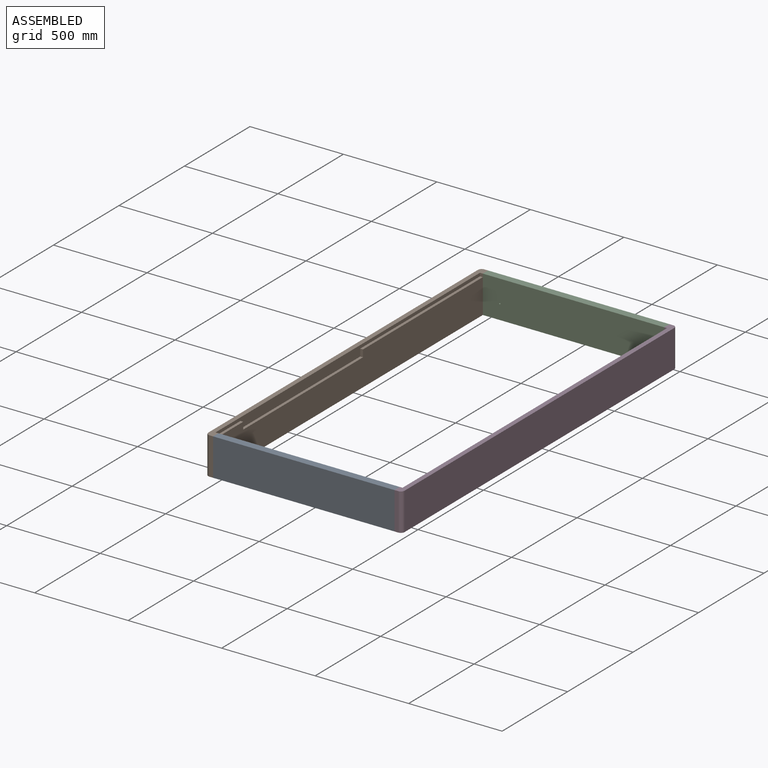
[diagram: assembled view]
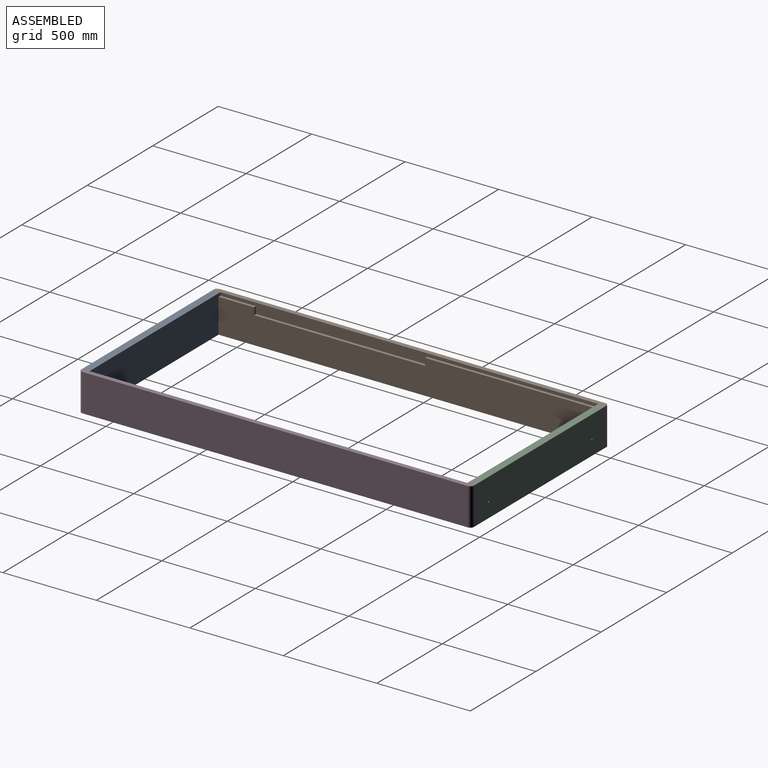
[diagram: assembled view, second angle]
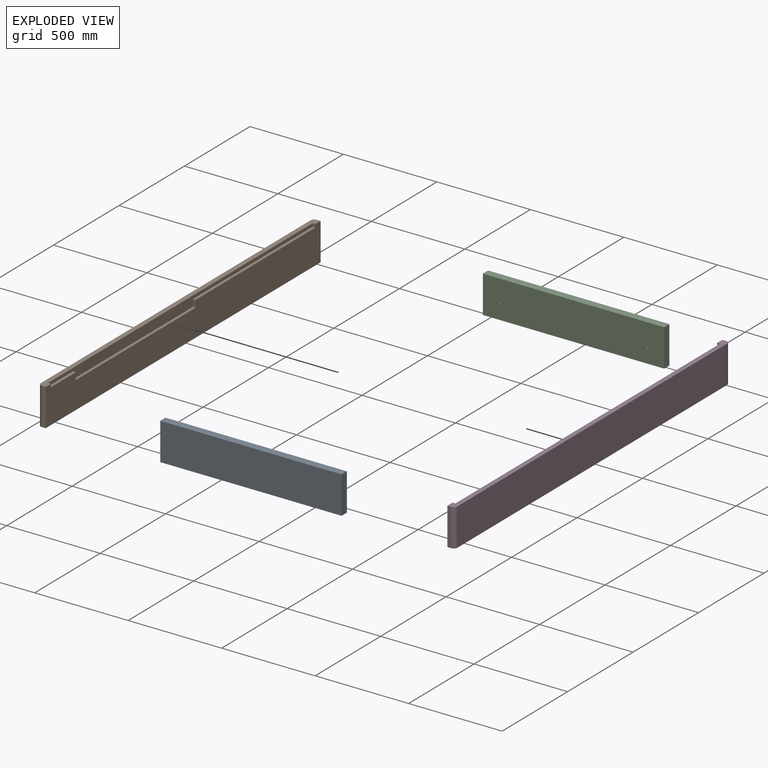
[diagram: exploded view]
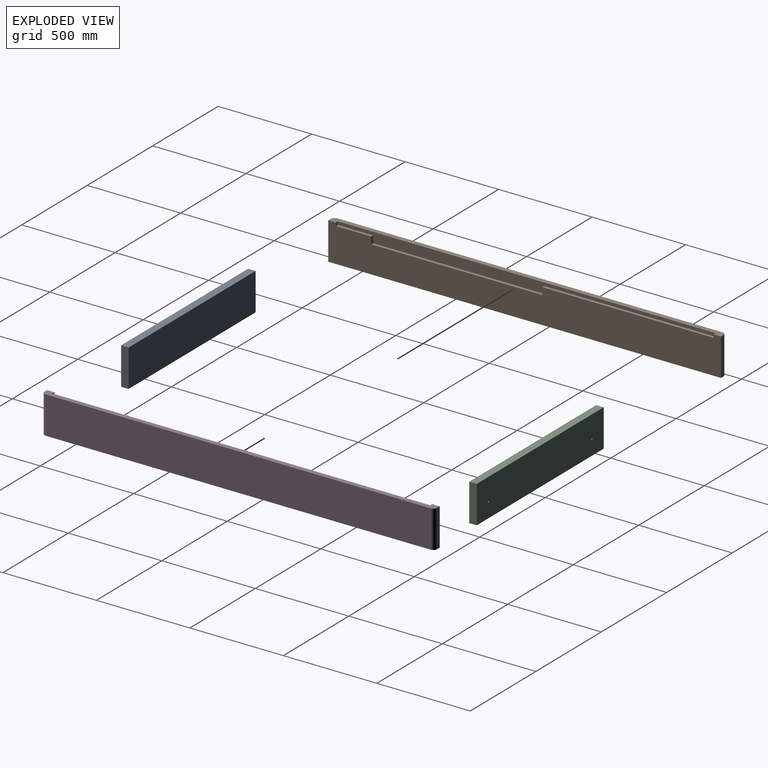
[diagram: exploded view, second angle]
ASSEMBLY  parts=4 mates=2
PART A: 6 faces, bbox 970x40x200 mm
  f0: plane 970x40mm, normal (0,0,1), area 38800mm2, adj f1,f3,f4,f5
  f1: plane 970x200mm, normal (0,-1,0), area 194000mm2, adj f0,f2,f4,f5
  f2: plane 970x40mm, normal (0,0,-1), area 38800mm2, adj f1,f3,f4,f5
  f3: plane 970x200mm, normal (0,1,0), area 194000mm2, adj f0,f2,f4,f5
  f4: plane 200x40mm, normal (1,0,0), area 8000mm2, adj f0,f1,f2,f3
  f5: plane 200x40mm, normal (-1,0,0), area 8000mm2, adj f0,f1,f2,f3
PART B: 16 faces, bbox 40x2100x200 mm
  f0: plane 190x15mm, normal (0,0,1), area 2850mm2, adj f6,f9,f12,f13
  f1: plane 2100x40mm, normal (0,0,1), area 53528.3mm2, adj f2,f4,f5,f6,f7,f8,f9,f11
  f2: plane 200x20mm, normal (0,-1,0), area 4000mm2, adj f1,f3,f6,f7
  f3: plane 2100x40mm, normal (0,0,-1), area 83828.3mm2, adj f2,f4,f5,f6,f7,f8
  f4: plane 200x20mm, normal (0,1,0), area 4000mm2, adj f1,f3,f6,f8
  f5: plane 2060x200mm, normal (-1,0,0), area 412000mm2, adj f1,f3,f7,f8
  f6: plane 2100x200mm, normal (1,0,0), area 350890mm2, adj f0,f1,f2,f3,f4,f9,f10,f11
  f7: cylinder r=20mm len=200mm, axis (0,0,1), area 6283.2mm2, adj f1,f2,f3,f5
  f8: cylinder r=20mm len=200mm, axis (0,0,-1), area 6283.2mm2, adj f1,f3,f4,f5
  f9: plane 17x15mm, normal (0,1,0), area 255mm2, adj f0,f1,f6,f12
  f10: plane 915x15mm, normal (0,0,1), area 13725mm2, adj f6,f11,f12,f15
  f11: plane 17x15mm, normal (0,-1,0), area 255mm2, adj f1,f6,f10,f12
  f12: plane 2020x55mm, normal (1,0,0), area 69110mm2, adj f0,f1,f9,f10,f11,f13,f14,f15
  f13: plane 38x15mm, normal (0,1,0), area 570mm2, adj f0,f6,f12,f14
  f14: plane 915x15mm, normal (0,0,1), area 13725mm2, adj f6,f12,f13,f15
  f15: plane 38x15mm, normal (0,-1,0), area 570mm2, adj f6,f10,f12,f14
PART C: 8 faces, bbox 970x40x200 mm
  f0: plane 970x40mm, normal (0,0,1), area 38800mm2, adj f1,f3,f4,f5
  f1: plane 970x200mm, normal (0,-1,0), area 193899.5mm2, adj f0,f2,f4,f5,f6,f7
  f2: plane 970x40mm, normal (0,0,-1), area 38800mm2, adj f1,f3,f4,f5
  f3: plane 970x200mm, normal (0,1,0), area 193899.5mm2, adj f0,f2,f4,f5,f6,f7
  f4: plane 200x40mm, normal (1,0,0), area 8000mm2, adj f0,f1,f2,f3
  f5: plane 200x40mm, normal (-1,0,0), area 8000mm2, adj f0,f1,f2,f3
  f6: cylinder r=4mm len=40mm, axis (0,1,0), area 1005.3mm2, adj f1,f3
  f7: cylinder r=4mm len=40mm, axis (0,1,0), area 1005.3mm2, adj f1,f3
PART D: 16 faces, bbox 40x2100x200 mm
  f0: plane 2100x200mm, normal (-1,0,0), area 353170mm2, adj f1,f2,f3,f4,f6,f9,f10,f11
  f1: plane 190x15mm, normal (0,0,1), area 2850mm2, adj f0,f11,f12,f14
  f2: plane 2100x40mm, normal (0,0,1), area 53528.3mm2, adj f0,f3,f4,f5,f7,f8,f9,f11
  f3: plane 200x20mm, normal (0,1,0), area 4000mm2, adj f0,f2,f6,f8
  f4: plane 200x20mm, normal (0,-1,0), area 4000mm2, adj f0,f2,f6,f7
  f5: plane 2060x200mm, normal (1,0,0), area 412000mm2, adj f2,f6,f7,f8
  f6: plane 2100x40mm, normal (0,0,-1), area 83828.3mm2, adj f0,f3,f4,f5,f7,f8
  f7: cylinder r=20mm len=200mm, axis (0,0,1), area 6283.2mm2, adj f2,f4,f5,f6
  f8: cylinder r=20mm len=200mm, axis (0,0,-1), area 6283.2mm2, adj f2,f3,f5,f6
  f9: plane 17x15mm, normal (0,-1,0), area 255mm2, adj f0,f2,f10,f12
  f10: plane 975x15mm, normal (0,0,1), area 14625mm2, adj f0,f9,f12,f13
  f11: plane 17x15mm, normal (0,1,0), area 255mm2, adj f0,f1,f2,f12
  f12: plane 2020x55mm, normal (-1,0,0), area 66830mm2, adj f1,f2,f9,f10,f11,f13,f14,f15
  f13: plane 38x15mm, normal (0,-1,0), area 570mm2, adj f0,f10,f12,f15
  f14: plane 38x15mm, normal (0,1,0), area 570mm2, adj f0,f1,f12,f15
  f15: plane 855x15mm, normal (0,0,1), area 12825mm2, adj f0,f12,f13,f14
PLACE A t=(0,-1086.62,136.56)mm
PLACE B at identity
PLACE C t=(0,421.99,60.46)mm
PLACE D t=(130.6,-294.32,-285.65)mm
MATE fastened C.f5 <-> B.f6  axis (-1,0,0) through (0,1462.98,-85.65)mm
MATE fastened D.f0 <-> A.f4  axis (-1,0,0) through (970,-637.02,-85.65)mm
